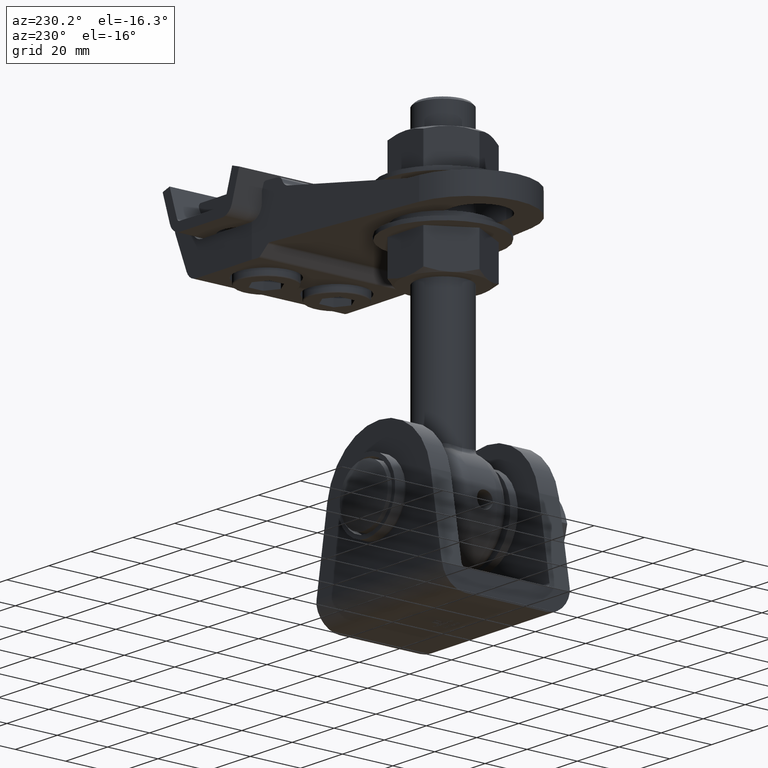
[diagram: clean part render]
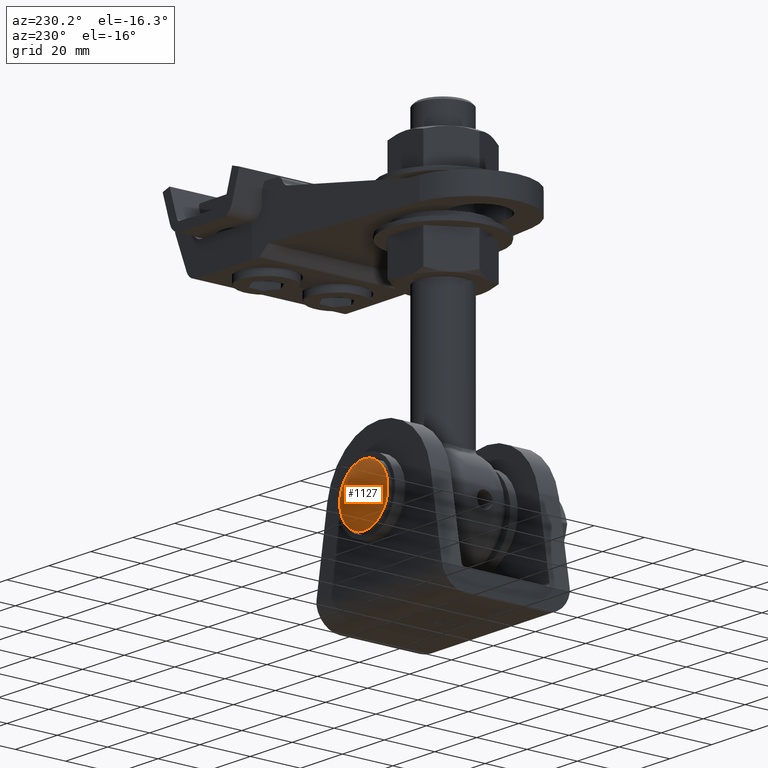
[diagram: same view with one face highlighted and labeled with its STEP entity id]
A machine part, auxiliary view. The second image highlights one B-rep face of the part: STEP entity #1127.
In plain terms, the highlighted spherical surface has radius 34.0625 mm.
Its self-contained STEP definition (entity closure, byte-faithful):
#1127 = ADVANCED_FACE ( 'NONE', ( #11121 ), #16120, .T. ) ;
#1209 = CIRCLE ( 'NONE', #21809, 11.50000000000000178 ) ;
#1341 = DIRECTION ( 'NONE',  ( 0.000000000000000000, 0.000000000000000000, 1.000000000000000000 ) ) ;
#6300 = ORIENTED_EDGE ( 'NONE', *, *, #14443, .F. ) ;
#7243 = CARTESIAN_POINT ( 'NONE',  ( -1.008963301541910807E-15, -34.49999999999999289, 11.50000000000000178 ) ) ;
#8268 = CARTESIAN_POINT ( 'NONE',  ( -1.008963301541910807E-15, -34.49999999999999289, 0.000000000000000000 ) ) ;
#8592 = DIRECTION ( 'NONE',  ( 0.000000000000000000, 0.000000000000000000, 1.000000000000000000 ) ) ;
#11121 = FACE_OUTER_BOUND ( 'NONE', #13596, .T. ) ;
#11860 = DIRECTION ( 'NONE',  ( -1.000000000000000000, 0.000000000000000000, 0.000000000000000000 ) ) ;
#13596 = EDGE_LOOP ( 'NONE', ( #6300 ) ) ;
#13747 = AXIS2_PLACEMENT_3D ( 'NONE', #20514, #8592, #11860 ) ;
#14443 = EDGE_CURVE ( 'NONE', #20882, #20882, #1209, .T. ) ;
#16120 = SPHERICAL_SURFACE ( 'NONE', #13747, 34.06249999999999289 ) ;
#20115 = DIRECTION ( 'NONE',  ( -0.000000000000000000, 1.000000000000000000, -0.000000000000000000 ) ) ;
#20514 = CARTESIAN_POINT ( 'NONE',  ( -1.044055492367392553E-15, -2.437500000000002220, 0.000000000000000000 ) ) ;
#20882 = VERTEX_POINT ( 'NONE', #7243 ) ;
#21809 = AXIS2_PLACEMENT_3D ( 'NONE', #8268, #20115, #1341 ) ;